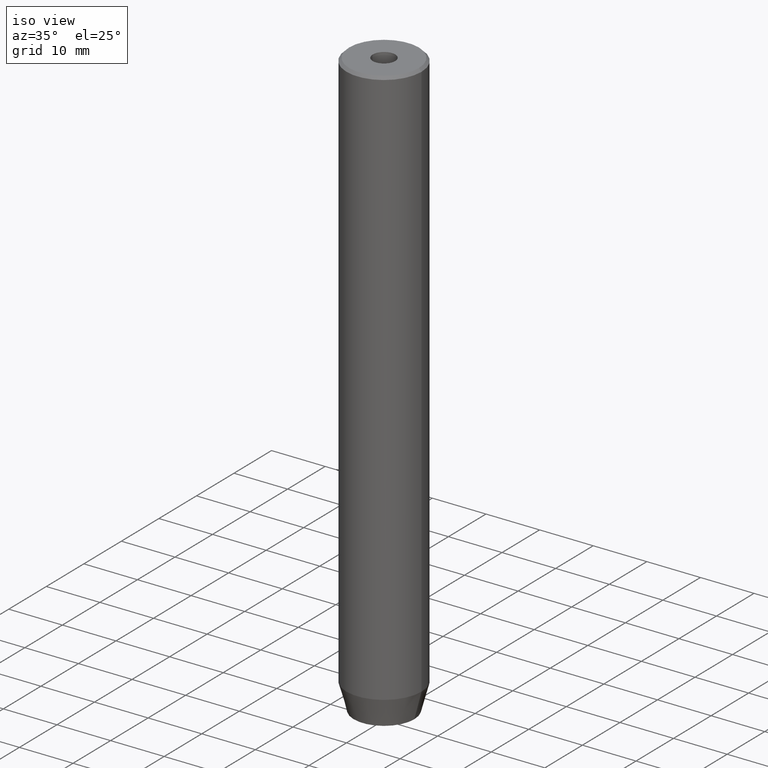
[diagram: clean part render]
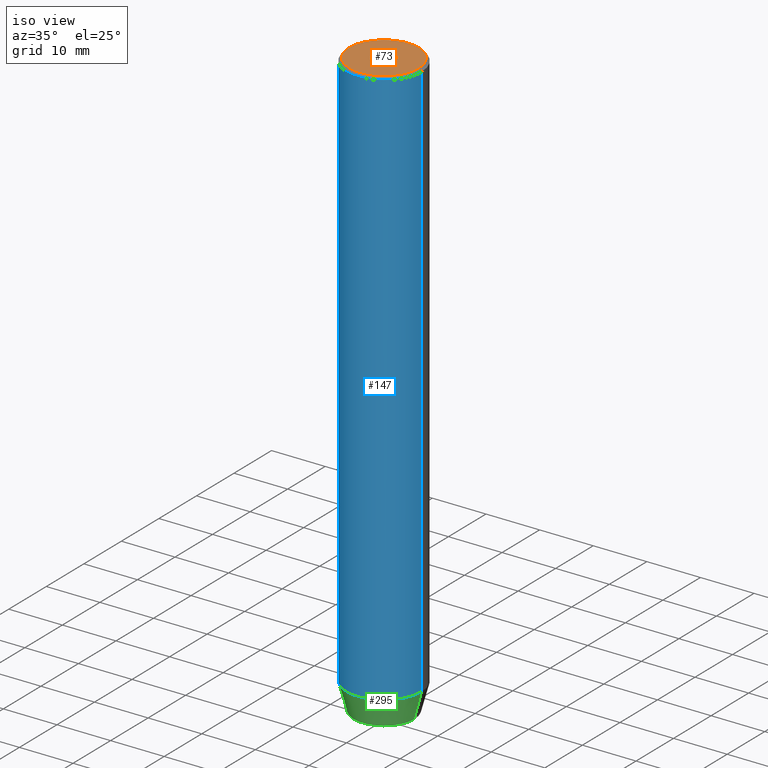
[diagram: same view with three faces highlighted in distinct colors, each labeled with its STEP entity id]
A machine part, iso view with three faces highlighted in distinct colors.
Their STEP definitions:

[orange] entity #73 — the highlighted planar face has unit normal (0, -0, 1).
#17 = ORIENTED_EDGE ( 'NONE', *, *, #520, .F. ) ;
#23 = EDGE_LOOP ( 'NONE', ( #488, #108 ) ) ;
#28 = DIRECTION ( 'NONE',  ( 1.000000000000000000, 0.000000000000000000, 0.000000000000000000 ) ) ;
#38 = CIRCLE ( 'NONE', #356, 6.499999999999992006 ) ;
#40 = VERTEX_POINT ( 'NONE', #287 ) ;
#62 = DIRECTION ( 'NONE',  ( 1.000000000000000000, 0.000000000000000000, 0.000000000000000000 ) ) ;
#64 = CARTESIAN_POINT ( 'NONE',  ( -6.499999999999992006, 0.000000000000000000, 0.000000000000000000 ) ) ;
#68 = DIRECTION ( 'NONE',  ( 1.000000000000000000, 0.000000000000000000, 0.000000000000000000 ) ) ;
#70 = DIRECTION ( 'NONE',  ( 1.000000000000000000, 0.000000000000000000, 0.000000000000000000 ) ) ;
#73 = ADVANCED_FACE ( 'NONE', ( #506, #103 ), #291, .T. ) ;
#103 = FACE_OUTER_BOUND ( 'NONE', #23, .T. ) ;
#108 = ORIENTED_EDGE ( 'NONE', *, *, #260, .T. ) ;
#111 = VERTEX_POINT ( 'NONE', #430 ) ;
#155 = CARTESIAN_POINT ( 'NONE',  ( 0.000000000000000000, 0.000000000000000000, 0.000000000000000000 ) ) ;
#163 = CIRCLE ( 'NONE', #226, 2.099999999999998757 ) ;
#178 = ORIENTED_EDGE ( 'NONE', *, *, #268, .F. ) ;
#213 = AXIS2_PLACEMENT_3D ( 'NONE', #155, #247, #62 ) ;
#226 = AXIS2_PLACEMENT_3D ( 'NONE', #568, #478, #68 ) ;
#247 = DIRECTION ( 'NONE',  ( 0.000000000000000000, -0.000000000000000000, 1.000000000000000000 ) ) ;
#257 = DIRECTION ( 'NONE',  ( -0.000000000000000000, -0.000000000000000000, 1.000000000000000000 ) ) ;
#259 = DIRECTION ( 'NONE',  ( -0.000000000000000000, -0.000000000000000000, 1.000000000000000000 ) ) ;
#260 = EDGE_CURVE ( 'NONE', #111, #495, #38, .T. ) ;
#268 = EDGE_CURVE ( 'NONE', #462, #40, #523, .T. ) ;
#287 = CARTESIAN_POINT ( 'NONE',  ( 2.099999999999998757, 0.000000000000000000, -1.990051048614449116E-16 ) ) ;
#291 = PLANE ( 'NONE',  #213 ) ;
#297 = CARTESIAN_POINT ( 'NONE',  ( -2.099999999999998757, 2.571758278209439985E-16, -1.990051048614449116E-16 ) ) ;
#355 = DIRECTION ( 'NONE',  ( -0.000000000000000000, -0.000000000000000000, 1.000000000000000000 ) ) ;
#356 = AXIS2_PLACEMENT_3D ( 'NONE', #358, #355, #70 ) ;
#358 = CARTESIAN_POINT ( 'NONE',  ( 0.000000000000000000, 0.000000000000000000, 0.000000000000000000 ) ) ;
#363 = CIRCLE ( 'NONE', #584, 6.499999999999992006 ) ;
#426 = DIRECTION ( 'NONE',  ( 1.000000000000000000, 0.000000000000000000, 0.000000000000000000 ) ) ;
#430 = CARTESIAN_POINT ( 'NONE',  ( 6.499999999999992006, 8.266365894244629403E-16, 0.000000000000000000 ) ) ;
#435 = EDGE_LOOP ( 'NONE', ( #17, #178 ) ) ;
#462 = VERTEX_POINT ( 'NONE', #297 ) ;
#464 = EDGE_CURVE ( 'NONE', #495, #111, #363, .T. ) ;
#478 = DIRECTION ( 'NONE',  ( -0.000000000000000000, -0.000000000000000000, 1.000000000000000000 ) ) ;
#488 = ORIENTED_EDGE ( 'NONE', *, *, #464, .T. ) ;
#495 = VERTEX_POINT ( 'NONE', #64 ) ;
#506 = FACE_BOUND ( 'NONE', #435, .T. ) ;
#520 = EDGE_CURVE ( 'NONE', #40, #462, #163, .T. ) ;
#522 = CARTESIAN_POINT ( 'NONE',  ( 0.000000000000000000, 0.000000000000000000, 0.000000000000000000 ) ) ;
#523 = CIRCLE ( 'NONE', #572, 2.099999999999998757 ) ;
#533 = CARTESIAN_POINT ( 'NONE',  ( 0.000000000000000000, 0.000000000000000000, -1.990051048614449116E-16 ) ) ;
#568 = CARTESIAN_POINT ( 'NONE',  ( 0.000000000000000000, 0.000000000000000000, -1.990051048614449116E-16 ) ) ;
#572 = AXIS2_PLACEMENT_3D ( 'NONE', #533, #257, #28 ) ;
#584 = AXIS2_PLACEMENT_3D ( 'NONE', #522, #259, #426 ) ;

[blue] entity #147 — the highlighted cylindrical surface (partial cylindrical patch) has radius 7 mm, axis along (-0, -0, 1).
#5 = DIRECTION ( 'NONE',  ( -0.000000000000000000, -0.000000000000000000, 1.000000000000000000 ) ) ;
#18 = CARTESIAN_POINT ( 'NONE',  ( -7.000000000000000000, 8.572527594031473190E-16, 0.000000000000000000 ) ) ;
#22 = VECTOR ( 'NONE', #5, 1000.000000000000000 ) ;
#55 = CARTESIAN_POINT ( 'NONE',  ( 7.000000000000000000, 0.000000000000000000, -0.5000000000000186517 ) ) ;
#77 = CYLINDRICAL_SURFACE ( 'NONE', #269, 7.000000000000000000 ) ;
#147 = ADVANCED_FACE ( 'NONE', ( #349 ), #77, .T. ) ;
#156 = ORIENTED_EDGE ( 'NONE', *, *, #168, .T. ) ;
#160 = ORIENTED_EDGE ( 'NONE', *, *, #243, .T. ) ;
#166 = DIRECTION ( 'NONE',  ( -0.000000000000000000, -0.000000000000000000, 1.000000000000000000 ) ) ;
#168 = EDGE_CURVE ( 'NONE', #413, #391, #395, .T. ) ;
#169 = CARTESIAN_POINT ( 'NONE',  ( 7.000000000000000000, 0.000000000000000000, -105.0000000000000142 ) ) ;
#189 = AXIS2_PLACEMENT_3D ( 'NONE', #577, #305, #482 ) ;
#194 = ORIENTED_EDGE ( 'NONE', *, *, #541, .F. ) ;
#206 = DIRECTION ( 'NONE',  ( -0.000000000000000000, -0.000000000000000000, 1.000000000000000000 ) ) ;
#216 = CARTESIAN_POINT ( 'NONE',  ( 0.000000000000000000, 0.000000000000000000, -105.0000000000000142 ) ) ;
#243 = EDGE_CURVE ( 'NONE', #340, #258, #299, .T. ) ;
#258 = VERTEX_POINT ( 'NONE', #169 ) ;
#269 = AXIS2_PLACEMENT_3D ( 'NONE', #526, #166, #308 ) ;
#299 = CIRCLE ( 'NONE', #562, 7.000000000000000000 ) ;
#305 = DIRECTION ( 'NONE',  ( 0.000000000000000000, 0.000000000000000000, -1.000000000000000000 ) ) ;
#308 = DIRECTION ( 'NONE',  ( 1.000000000000000000, 0.000000000000000000, 0.000000000000000000 ) ) ;
#324 = LINE ( 'NONE', #553, #22 ) ;
#340 = VERTEX_POINT ( 'NONE', #406 ) ;
#348 = LINE ( 'NONE', #18, #475 ) ;
#349 = FACE_OUTER_BOUND ( 'NONE', #518, .T. ) ;
#391 = VERTEX_POINT ( 'NONE', #449 ) ;
#394 = EDGE_CURVE ( 'NONE', #258, #413, #324, .T. ) ;
#395 = CIRCLE ( 'NONE', #189, 7.000000000000000000 ) ;
#406 = CARTESIAN_POINT ( 'NONE',  ( -7.000000000000000000, 8.572527594031473190E-16, -105.0000000000000142 ) ) ;
#413 = VERTEX_POINT ( 'NONE', #55 ) ;
#449 = CARTESIAN_POINT ( 'NONE',  ( -7.000000000000000000, 8.572527594031473190E-16, -0.5000000000000186517 ) ) ;
#475 = VECTOR ( 'NONE', #206, 1000.000000000000000 ) ;
#479 = DIRECTION ( 'NONE',  ( 1.000000000000000000, 0.000000000000000000, 0.000000000000000000 ) ) ;
#482 = DIRECTION ( 'NONE',  ( 1.000000000000000000, 0.000000000000000000, 0.000000000000000000 ) ) ;
#491 = ORIENTED_EDGE ( 'NONE', *, *, #394, .T. ) ;
#518 = EDGE_LOOP ( 'NONE', ( #194, #160, #491, #156 ) ) ;
#526 = CARTESIAN_POINT ( 'NONE',  ( 0.000000000000000000, 0.000000000000000000, 0.000000000000000000 ) ) ;
#541 = EDGE_CURVE ( 'NONE', #340, #391, #348, .T. ) ;
#553 = CARTESIAN_POINT ( 'NONE',  ( 7.000000000000000000, 0.000000000000000000, 0.000000000000000000 ) ) ;
#562 = AXIS2_PLACEMENT_3D ( 'NONE', #216, #576, #479 ) ;
#576 = DIRECTION ( 'NONE',  ( -0.000000000000000000, -0.000000000000000000, 1.000000000000000000 ) ) ;
#577 = CARTESIAN_POINT ( 'NONE',  ( 0.000000000000000000, 0.000000000000000000, -0.5000000000000186517 ) ) ;

[green] entity #295 — the highlighted conical surface has half-angle 15 deg.
#1 = DIRECTION ( 'NONE',  ( 0.2588190451025213501, 0.000000000000000000, 0.9659258262890680902 ) ) ;
#4 = ORIENTED_EDGE ( 'NONE', *, *, #92, .F. ) ;
#13 = ORIENTED_EDGE ( 'NONE', *, *, #307, .T. ) ;
#14 = CARTESIAN_POINT ( 'NONE',  ( 0.000000000000000000, 0.000000000000000000, -105.0000000000000142 ) ) ;
#44 = CONICAL_SURFACE ( 'NONE', #75, 7.000000000000000000, 0.2617993877991500740 ) ;
#65 = VECTOR ( 'NONE', #193, 1000.000000000000000 ) ;
#75 = AXIS2_PLACEMENT_3D ( 'NONE', #14, #236, #453 ) ;
#89 = FACE_OUTER_BOUND ( 'NONE', #318, .T. ) ;
#92 = EDGE_CURVE ( 'NONE', #346, #340, #381, .T. ) ;
#153 = VERTEX_POINT ( 'NONE', #158 ) ;
#158 = CARTESIAN_POINT ( 'NONE',  ( 5.660254037844381969, 0.000000000000000000, -110.0000000000000142 ) ) ;
#169 = CARTESIAN_POINT ( 'NONE',  ( 7.000000000000000000, 0.000000000000000000, -105.0000000000000142 ) ) ;
#182 = DIRECTION ( 'NONE',  ( 1.000000000000000000, 0.000000000000000000, 0.000000000000000000 ) ) ;
#193 = DIRECTION ( 'NONE',  ( -0.2588190451025213501, 3.169619151431772337E-17, 0.9659258262890680902 ) ) ;
#204 = CARTESIAN_POINT ( 'NONE',  ( -7.000000000000000000, 8.572527594031473190E-16, -105.0000000000000142 ) ) ;
#216 = CARTESIAN_POINT ( 'NONE',  ( 0.000000000000000000, 0.000000000000000000, -105.0000000000000142 ) ) ;
#236 = DIRECTION ( 'NONE',  ( -0.000000000000000000, -0.000000000000000000, 1.000000000000000000 ) ) ;
#241 = CARTESIAN_POINT ( 'NONE',  ( -5.660254037844381969, 7.752169791919238770E-16, -110.0000000000000142 ) ) ;
#243 = EDGE_CURVE ( 'NONE', #340, #258, #299, .T. ) ;
#258 = VERTEX_POINT ( 'NONE', #169 ) ;
#278 = CARTESIAN_POINT ( 'NONE',  ( 7.000000000000000000, 0.000000000000000000, -105.0000000000000142 ) ) ;
#288 = CIRCLE ( 'NONE', #451, 5.660254037844381969 ) ;
#295 = ADVANCED_FACE ( 'NONE', ( #89 ), #44, .T. ) ;
#299 = CIRCLE ( 'NONE', #562, 7.000000000000000000 ) ;
#307 = EDGE_CURVE ( 'NONE', #153, #258, #331, .T. ) ;
#318 = EDGE_LOOP ( 'NONE', ( #4, #471, #13, #446 ) ) ;
#331 = LINE ( 'NONE', #278, #492 ) ;
#335 = CARTESIAN_POINT ( 'NONE',  ( 0.000000000000000000, 0.000000000000000000, -110.0000000000000142 ) ) ;
#340 = VERTEX_POINT ( 'NONE', #406 ) ;
#346 = VERTEX_POINT ( 'NONE', #241 ) ;
#351 = EDGE_CURVE ( 'NONE', #346, #153, #288, .T. ) ;
#381 = LINE ( 'NONE', #204, #65 ) ;
#406 = CARTESIAN_POINT ( 'NONE',  ( -7.000000000000000000, 8.572527594031473190E-16, -105.0000000000000142 ) ) ;
#420 = DIRECTION ( 'NONE',  ( -0.000000000000000000, -0.000000000000000000, 1.000000000000000000 ) ) ;
#446 = ORIENTED_EDGE ( 'NONE', *, *, #243, .F. ) ;
#451 = AXIS2_PLACEMENT_3D ( 'NONE', #335, #420, #182 ) ;
#453 = DIRECTION ( 'NONE',  ( 1.000000000000000000, 0.000000000000000000, 0.000000000000000000 ) ) ;
#471 = ORIENTED_EDGE ( 'NONE', *, *, #351, .T. ) ;
#479 = DIRECTION ( 'NONE',  ( 1.000000000000000000, 0.000000000000000000, 0.000000000000000000 ) ) ;
#492 = VECTOR ( 'NONE', #1, 1000.000000000000000 ) ;
#562 = AXIS2_PLACEMENT_3D ( 'NONE', #216, #576, #479 ) ;
#576 = DIRECTION ( 'NONE',  ( -0.000000000000000000, -0.000000000000000000, 1.000000000000000000 ) ) ;